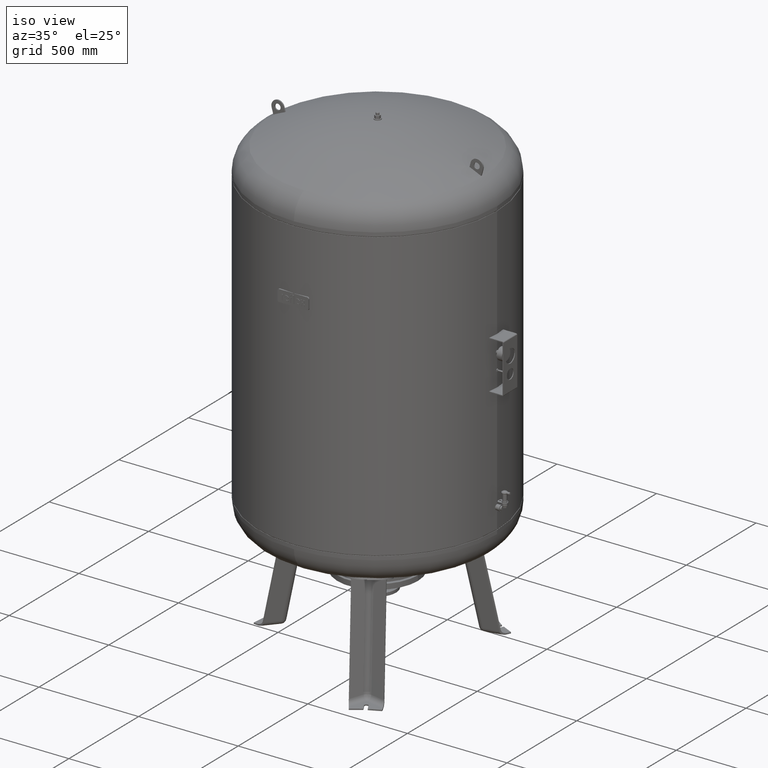
[diagram: clean part render]
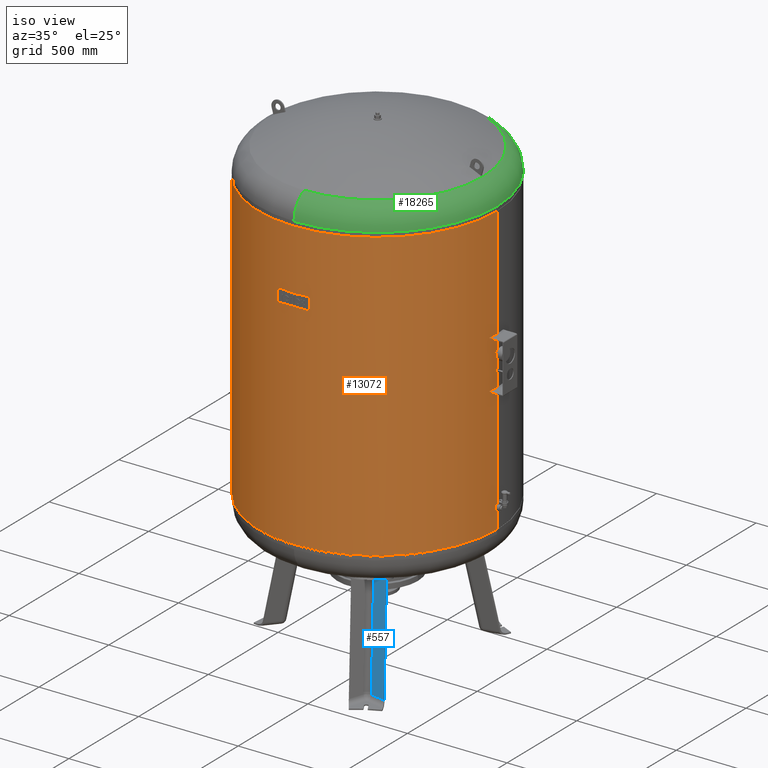
[diagram: same view with three faces highlighted in distinct colors, each labeled with its STEP entity id]
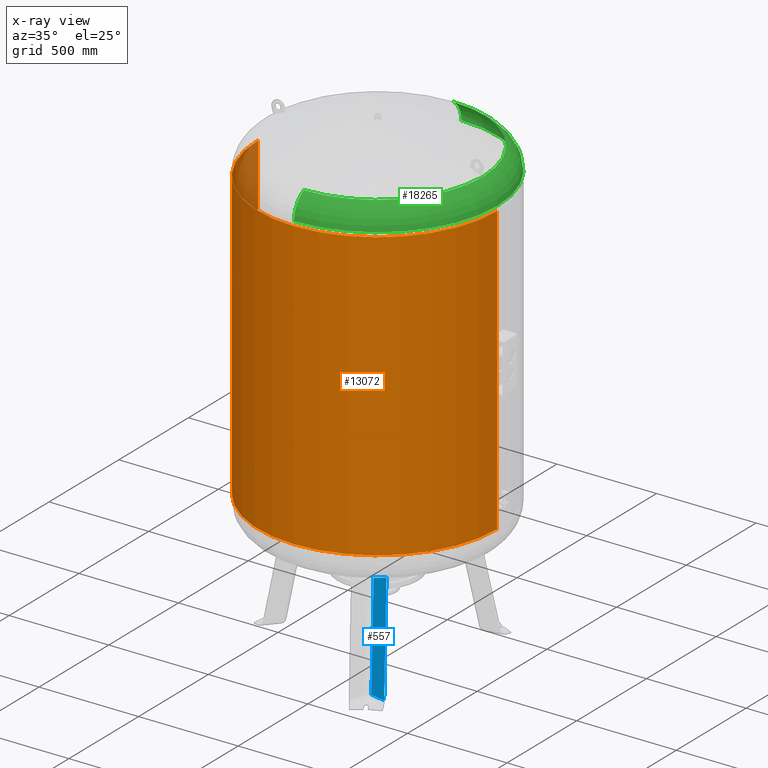
[diagram: x-ray of the same camera — body ghosted, the three highlighted faces saturated]
A machine part, iso view with three faces highlighted in distinct colors.
The next image is the same camera in x-ray (body ghosted, the three faces saturated) — at least one of them is partly hidden behind the body in this view.
Their STEP definitions:

[orange] entity #13072 — the highlighted cylindrical surface (partial cylindrical patch) has radius 600 mm, axis along (0, 0, 1).
#13031=CARTESIAN_POINT('',(8.309455E-015,0.0,1800.0));
#13032=DIRECTION('',(2.301788E-017,0.0,1.0));
#13033=DIRECTION('',(1.0,0.0,0.0));
#13034=AXIS2_PLACEMENT_3D('',#13031,#13032,#13033);
#13035=CYLINDRICAL_SURFACE('',#13034,600.000000000000570);
#13036=CARTESIAN_POINT('',(600.000000000000800,0.0,2161.0));
#13037=VERTEX_POINT('',#13036);
#13038=CARTESIAN_POINT('',(600.0,0.0,716.999999999999660));
#13039=VERTEX_POINT('',#13038);
#13040=CARTESIAN_POINT('',(600.000000000000800,0.0,2161.0));
#13041=DIRECTION('',(0.0,0.0,-1.0));
#13042=VECTOR('',#13041,1444.000000000000500);
#13043=LINE('',#13040,#13042);
#13044=EDGE_CURVE('',#13037,#13039,#13043,.T.);
#13045=ORIENTED_EDGE('',*,*,#13044,.F.);
#13046=CARTESIAN_POINT('',(-600.000000000000570,-7.347638E-014,2161.0));
#13047=VERTEX_POINT('',#13046);
#13048=CARTESIAN_POINT('',(1.661891E-014,0.0,2161.0));
#13049=DIRECTION('',(0.0,0.0,1.0));
#13050=DIRECTION('',(1.0,0.0,0.0));
#13051=AXIS2_PLACEMENT_3D('',#13048,#13049,#13050);
#13052=CIRCLE('',#13051,600.000000000000800);
#13053=EDGE_CURVE('',#13047,#13037,#13052,.T.);
#13054=ORIENTED_EDGE('',*,*,#13053,.F.);
#13055=CARTESIAN_POINT('',(-599.999999999999890,-7.347638E-014,716.999999999999660));
#13056=VERTEX_POINT('',#13055);
#13057=CARTESIAN_POINT('',(-600.000000000000570,-7.347638E-014,2161.0));
#13058=DIRECTION('',(0.0,0.0,-1.0));
#13059=VECTOR('',#13058,1444.000000000000500);
#13060=LINE('',#13057,#13059);
#13061=EDGE_CURVE('',#13047,#13056,#13060,.T.);
#13062=ORIENTED_EDGE('',*,*,#13061,.T.);
#13063=CARTESIAN_POINT('',(-1.661891E-014,0.0,716.999999999999550));
#13064=DIRECTION('',(0.0,0.0,1.0));
#13065=DIRECTION('',(1.0,0.0,0.0));
#13066=AXIS2_PLACEMENT_3D('',#13063,#13064,#13065);
#13067=CIRCLE('',#13066,600.0);
#13068=EDGE_CURVE('',#13056,#13039,#13067,.T.);
#13069=ORIENTED_EDGE('',*,*,#13068,.T.);
#13070=EDGE_LOOP('',(#13045,#13054,#13062,#13069));
#13071=FACE_OUTER_BOUND('',#13070,.T.);
#13072=ADVANCED_FACE('',(#13071),#13035,.T.);

[blue] entity #557 — the highlighted planar face has unit normal (-0.1854, -0.9697, 0.1588).
#242=CARTESIAN_POINT('',(200.691767344436100,-315.335436048247000,510.149969666713160));
#243=VERTEX_POINT('',#242);
#261=CARTESIAN_POINT('',(271.771968126689560,-325.047124528705980,533.843746499036000));
#262=VERTEX_POINT('',#261);
#263=CARTESIAN_POINT('',(271.771968126689560,-325.047124528705980,533.843746499036000));
#264=CARTESIAN_POINT('',(257.513808971361470,-323.211592071711270,528.403592446426270));
#265=CARTESIAN_POINT('',(243.225974251741770,-321.307001339405250,523.350498082422290));
#266=CARTESIAN_POINT('',(221.687438673815650,-318.331667884720670,516.369477981931600));
#267=CARTESIAN_POINT('',(214.406460403978000,-317.307714099314690,514.120476420435810));
#268=CARTESIAN_POINT('',(204.991636255337990,-315.957534318820250,511.371950061965830));
#269=CARTESIAN_POINT('',(202.840845807966590,-315.647301758491840,510.754973838816850));
#270=CARTESIAN_POINT('',(200.691767344436100,-315.335436048247000,510.149969666713160));
#271=B_SPLINE_CURVE_WITH_KNOTS('',3,(#263,#264,#265,#266,#267,#268,#269,#270),.UNSPECIFIED.,.F.,.U.,(4,2,2,4),(536.144034177567730,540.433260676197730,542.629325785795340,543.280185670864850),.UNSPECIFIED.);
#272=EDGE_CURVE('',#262,#243,#271,.T.);
#497=CARTESIAN_POINT('',(325.635267289667130,-418.341095342265480,27.029948423057281));
#498=VERTEX_POINT('',#497);
#499=CARTESIAN_POINT('',(325.635267289667130,-418.341095342265480,27.029948423057281));
#500=DIRECTION('',(-0.103955845408880,0.180056805991956,0.978147600733805));
#501=VECTOR('',#500,518.136319810800960);
#502=LINE('',#499,#501);
#503=EDGE_CURVE('',#498,#262,#502,.T.);
#534=CARTESIAN_POINT('',(332.921411956779370,-430.961068097000800,-41.527282742766886));
#535=DIRECTION('',(-0.185430570007244,-0.969740897595359,0.158802063077709));
#536=DIRECTION('',(-0.103955845408880,0.180056805991956,0.978147600733806));
#537=AXIS2_PLACEMENT_3D('',#534,#535,#536);
#538=PLANE('',#537);
#539=CARTESIAN_POINT('',(252.036932639185950,-404.267871061775960,27.029948423057284));
#540=VERTEX_POINT('',#539);
#541=CARTESIAN_POINT('',(252.036932639185950,-404.267871061775960,27.029948423057284));
#542=DIRECTION('',(-0.103955845408880,0.180056805991956,0.978147600733806));
#543=VECTOR('',#542,493.913209909444730);
#544=LINE('',#541,#543);
#545=EDGE_CURVE('',#540,#243,#544,.T.);
#546=ORIENTED_EDGE('',*,*,#545,.F.);
#547=CARTESIAN_POINT('',(325.635267289667130,-418.341095342265480,27.029948423057281));
#548=DIRECTION('',(-0.982204642422582,0.187813845079450,4.741265E-017));
#549=VECTOR('',#548,74.931772333057609);
#550=LINE('',#547,#549);
#551=EDGE_CURVE('',#498,#540,#550,.T.);
#552=ORIENTED_EDGE('',*,*,#551,.F.);
#553=ORIENTED_EDGE('',*,*,#503,.T.);
#554=ORIENTED_EDGE('',*,*,#272,.T.);
#555=EDGE_LOOP('',(#546,#552,#553,#554));
#556=FACE_OUTER_BOUND('',#555,.T.);
#557=ADVANCED_FACE('',(#556),#538,.T.);

[green] entity #18265 — the highlighted toroidal blend (fillet) surface has major radius 473 mm and minor (blend) radius 127 mm.
#18170=CARTESIAN_POINT('',(600.0,-4.336858E-014,2182.912457433727900));
#18171=VERTEX_POINT('',#18170);
#18195=CARTESIAN_POINT('',(1.156183E-013,600.0,2182.912457433727500));
#18196=VERTEX_POINT('',#18195);
#18204=CARTESIAN_POINT('',(6.604942E-015,-4.336858E-014,2182.912457433727500));
#18205=DIRECTION('',(0.0,0.0,-1.0));
#18206=DIRECTION('',(1.0,0.0,0.0));
#18207=AXIS2_PLACEMENT_3D('',#18204,#18205,#18206);
#18208=CIRCLE('',#18207,600.0);
#18209=EDGE_CURVE('',#18196,#18171,#18208,.T.);
#18214=CARTESIAN_POINT('',(4.214189E-014,-4.336858E-014,2182.912457433727500));
#18215=DIRECTION('',(2.797667E-017,-1.836970E-016,-1.0));
#18216=DIRECTION('',(0.0,-1.0,0.0));
#18217=AXIS2_PLACEMENT_3D('',#18214,#18215,#18216);
#18218=TOROIDAL_SURFACE('',#18217,472.999999999999890,127.000000000000010);
#18219=CARTESIAN_POINT('',(4.214189E-014,-600.0,2182.912457433727500));
#18220=VERTEX_POINT('',#18219);
#18221=CARTESIAN_POINT('',(3.894773E-014,-528.621296296296240,2297.084570483804800));
#18222=VERTEX_POINT('',#18221);
#18223=CARTESIAN_POINT('',(4.214189E-014,-472.999999999999940,2182.912457433727500));
#18224=DIRECTION('',(-1.0,0.0,0.0));
#18225=DIRECTION('',(0.0,-1.0,0.0));
#18226=AXIS2_PLACEMENT_3D('',#18223,#18224,#18225);
#18227=CIRCLE('',#18226,127.000000000000010);
#18228=EDGE_CURVE('',#18220,#18222,#18227,.T.);
#18229=ORIENTED_EDGE('',*,*,#18228,.F.);
#18230=CARTESIAN_POINT('',(6.604942E-015,-4.336858E-014,2182.912457433727500));
#18231=DIRECTION('',(0.0,0.0,-1.0));
#18232=DIRECTION('',(1.0,0.0,0.0));
#18233=AXIS2_PLACEMENT_3D('',#18230,#18231,#18232);
#18234=CIRCLE('',#18233,600.0);
#18235=EDGE_CURVE('',#18171,#18220,#18234,.T.);
#18236=ORIENTED_EDGE('',*,*,#18235,.F.);
#18237=ORIENTED_EDGE('',*,*,#18209,.F.);
#18238=CARTESIAN_POINT('',(1.036830E-013,528.621296296296240,2297.084570483804800));
#18239=VERTEX_POINT('',#18238);
#18240=CARTESIAN_POINT('',(1.000658E-013,472.999999999999830,2182.912457433727500));
#18241=DIRECTION('',(1.0,0.0,0.0));
#18242=DIRECTION('',(0.0,1.0,0.0));
#18243=AXIS2_PLACEMENT_3D('',#18240,#18241,#18242);
#18244=CIRCLE('',#18243,127.000000000000010);
#18245=EDGE_CURVE('',#18196,#18239,#18244,.T.);
#18246=ORIENTED_EDGE('',*,*,#18245,.T.);
#18247=CARTESIAN_POINT('',(528.621296296296240,-2.239550E-014,2297.084570483804800));
#18248=VERTEX_POINT('',#18247);
#18249=CARTESIAN_POINT('',(3.410787E-015,-2.239550E-014,2297.084570483804800));
#18250=DIRECTION('',(0.0,0.0,-1.0));
#18251=DIRECTION('',(1.0,0.0,0.0));
#18252=AXIS2_PLACEMENT_3D('',#18249,#18250,#18251);
#18253=CIRCLE('',#18252,528.621296296296240);
#18254=EDGE_CURVE('',#18239,#18248,#18253,.T.);
#18255=ORIENTED_EDGE('',*,*,#18254,.T.);
#18256=CARTESIAN_POINT('',(3.410787E-015,-2.239550E-014,2297.084570483804800));
#18257=DIRECTION('',(0.0,0.0,-1.0));
#18258=DIRECTION('',(1.0,0.0,0.0));
#18259=AXIS2_PLACEMENT_3D('',#18256,#18257,#18258);
#18260=CIRCLE('',#18259,528.621296296296240);
#18261=EDGE_CURVE('',#18248,#18222,#18260,.T.);
#18262=ORIENTED_EDGE('',*,*,#18261,.T.);
#18263=EDGE_LOOP('',(#18229,#18236,#18237,#18246,#18255,#18262));
#18264=FACE_OUTER_BOUND('',#18263,.T.);
#18265=ADVANCED_FACE('',(#18264),#18218,.T.);